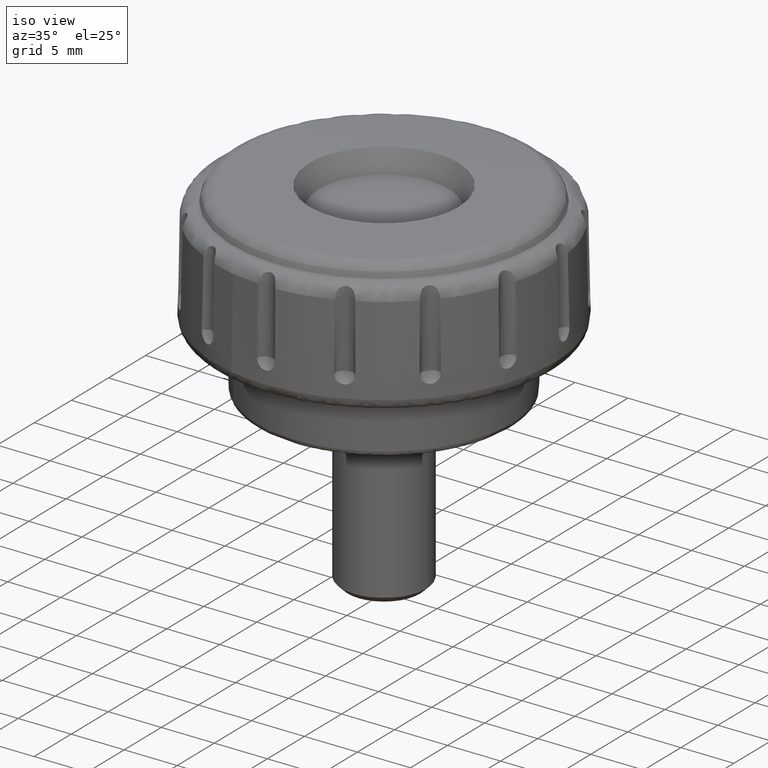
[diagram: clean part render]
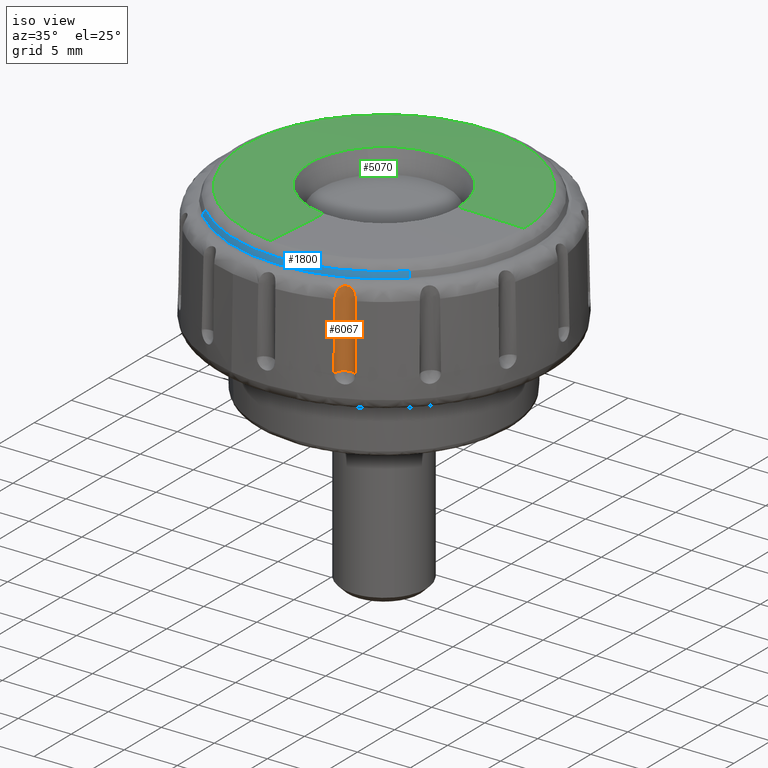
[diagram: same view with three faces highlighted in distinct colors, each labeled with its STEP entity id]
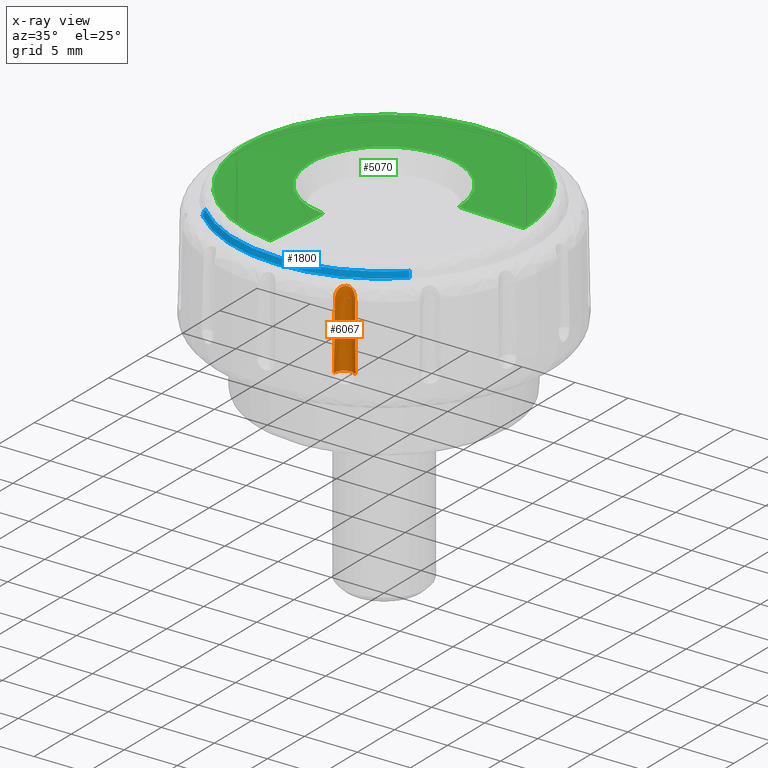
[diagram: x-ray of the same camera — body ghosted, the three highlighted faces saturated]
A machine part, iso view with three faces highlighted in distinct colors.
The next image is the same camera in x-ray (body ghosted, the three faces saturated) — at least one of them is partly hidden behind the body in this view.
Their STEP definitions:

[orange] entity #6067 — the highlighted face is a freeform B-spline surface patch.
#2724=CARTESIAN_POINT('',(7.155010178623190,-14.099589164040040,15.326313504426750));
#2725=VERTEX_POINT('',#2724);
#2734=CARTESIAN_POINT('',(7.252637012994430,-14.191353394448839,9.099991000000141));
#2735=VERTEX_POINT('',#2734);
#2736=CARTESIAN_POINT('',(7.252637012994430,-14.191353394448839,9.099991000000141));
#2737=CARTESIAN_POINT('',(7.155010178623190,-14.099589164040040,15.326313504426750));
#2738=QUASI_UNIFORM_CURVE('',1,(#2736,#2737),.UNSPECIFIED.,.F.,.U.);
#2739=EDGE_CURVE('',#2735,#2725,#2738,.T.);
#2741=CARTESIAN_POINT('',(5.693269439400051,-14.885628569153020,9.099991000000120));
#2742=VERTEX_POINT('',#2741);
#2793=CARTESIAN_POINT('',(5.690400429287561,-14.751675437226821,15.326313504426750));
#2794=VERTEX_POINT('',#2793);
#2795=CARTESIAN_POINT('',(5.690400429287561,-14.751675437226821,15.326313504426750));
#2796=CARTESIAN_POINT('',(5.693269439400051,-14.885628569153020,9.099991000000120));
#2797=QUASI_UNIFORM_CURVE('',1,(#2795,#2796),.UNSPECIFIED.,.F.,.U.);
#2798=EDGE_CURVE('',#2794,#2742,#2797,.T.);
#4790=CARTESIAN_POINT('',(7.155010178623179,-14.099589164040040,15.326313504426750));
#4791=CARTESIAN_POINT('',(7.153872079229410,-14.098668923685070,15.392275721103600));
#4792=CARTESIAN_POINT('',(7.148539027649565,-14.094299853092020,15.457215844345249));
#4793=CARTESIAN_POINT('',(7.129177985886060,-14.079364062275941,15.585084659193910));
#4794=CARTESIAN_POINT('',(7.115112860406698,-14.068754201411579,15.648165348789490));
#4795=CARTESIAN_POINT('',(7.076418985129701,-14.042400173702790,15.771480120165689));
#4796=CARTESIAN_POINT('',(7.052274401676002,-14.026993939427390,15.830187260820811));
#4797=CARTESIAN_POINT('',(7.007424465464729,-14.002362371140689,15.913622888200081));
#4798=CARTESIAN_POINT('',(6.991024899165778,-13.993902433491490,15.940659858825740));
#4799=CARTESIAN_POINT('',(6.954928545796283,-13.976881949035810,15.993099398981199));
#4800=CARTESIAN_POINT('',(6.935289303765049,-13.968362239756109,16.018370617664150));
#4801=CARTESIAN_POINT('',(6.872469715871786,-13.944017231579590,16.089836993467131));
#4802=CARTESIAN_POINT('',(6.824858456605252,-13.929128694227231,16.132419336099549));
#4803=CARTESIAN_POINT('',(6.717624058069604,-13.906972231732640,16.206696576304651));
#4804=CARTESIAN_POINT('',(6.660258309357451,-13.900193439262720,16.236916716465380));
#4805=CARTESIAN_POINT('',(6.569122926503893,-13.899143389727969,16.273372733730451));
#4806=CARTESIAN_POINT('',(6.537611612275643,-13.900352380077109,16.284103694936629));
#4807=CARTESIAN_POINT('',(6.474586606004428,-13.906191922838360,16.302198413553530));
#4808=CARTESIAN_POINT('',(6.443059561454811,-13.910785872488860,16.309608231862089));
#4809=CARTESIAN_POINT('',(6.380067265446056,-13.923463378222630,16.321470491403609));
#4810=CARTESIAN_POINT('',(6.348601795765532,-13.931545253071469,16.325923424713789));
#4811=CARTESIAN_POINT('',(6.285794141848523,-13.951453023181161,16.331938362176221));
#4812=CARTESIAN_POINT('',(6.254943466534269,-13.963139377276940,16.333442616285950));
#4813=CARTESIAN_POINT('',(6.195103786972684,-13.989611566164230,16.333568197326350));
#4814=CARTESIAN_POINT('',(6.165986504078414,-14.004437636349691,16.332201752975369));
#4815=CARTESIAN_POINT('',(6.109360703456350,-14.037272097609470,16.326516220408550));
#4816=CARTESIAN_POINT('',(6.081714636102221,-14.055409816732441,16.322144624058801));
#4817=CARTESIAN_POINT('',(6.029660307390033,-14.093717537669241,16.310487336771359));
#4818=CARTESIAN_POINT('',(6.005056914140068,-14.113979221621459,16.303198625291209));
#4819=CARTESIAN_POINT('',(5.958569259411425,-14.156485693716700,16.285489112634881));
#4820=CARTESIAN_POINT('',(5.936591930343115,-14.178839377608631,16.275010779707198));
#4821=CARTESIAN_POINT('',(5.875313556136472,-14.247846847711330,16.238602871068771));
#4822=CARTESIAN_POINT('',(5.841669095699775,-14.295158960809211,16.208460699983139));
#4823=CARTESIAN_POINT('',(5.799977422945171,-14.365863587420360,16.153291029476762));
#4824=CARTESIAN_POINT('',(5.787620073782566,-14.389306200205370,16.133261844905380));
#4825=CARTESIAN_POINT('',(5.766063632782382,-14.434489351810230,16.090859748792742));
#4826=CARTESIAN_POINT('',(5.756765933131971,-14.456393644669181,16.068364298256711));
#4827=CARTESIAN_POINT('',(5.740603058117427,-14.498587612265350,16.020775310077280));
#4828=CARTESIAN_POINT('',(5.733710562348033,-14.518977953581510,15.995538181463861));
#4829=CARTESIAN_POINT('',(5.722070583673449,-14.557347453599331,15.943208481862390));
#4830=CARTESIAN_POINT('',(5.717314969428277,-14.575312270280580,15.916170960119111));
#4831=CARTESIAN_POINT('',(5.709385927126546,-14.608797425340420,15.860425718516611));
#4832=CARTESIAN_POINT('',(5.706213849121438,-14.624317979147680,15.831717933635810));
#4833=CARTESIAN_POINT('',(5.701026223483047,-14.652879611350491,15.772672126267000));
#4834=CARTESIAN_POINT('',(5.699011033868906,-14.665937812188821,15.742256066367601));
#4835=CARTESIAN_POINT('',(5.694252125510992,-14.700752129798980,15.650174610634000));
#4836=CARTESIAN_POINT('',(5.692698057501048,-14.718441833733509,15.587218446226860));
#4837=CARTESIAN_POINT('',(5.690804739832751,-14.743205357754350,15.458347906808440));
#4838=CARTESIAN_POINT('',(5.690478195154371,-14.750212010675160,15.392361151363779));
#4839=CARTESIAN_POINT('',(5.690400429287561,-14.751675437226821,15.326313504426750));
#4840=B_SPLINE_CURVE_WITH_KNOTS('',3,(#4790,#4791,#4792,#4793,#4794,#4795,#4796,#4797,#4798,#4799,#4800,#4801,#4802,#4803,#4804,#4805,#4806,#4807,#4808,#4809,#4810,#4811,#4812,#4813,#4814,#4815,#4816,#4817,#4818,#4819,#4820,#4821,#4822,#4823,#4824,#4825,#4826,#4827,#4828,#4829,#4830,#4831,#4832,#4833,#4834,#4835,#4836,#4837,#4838,#4839),.UNSPECIFIED.,.F.,.U.,(4,2,2,2,2,2,2,2,2,2,2,2,2,2,2,2,2,2,2,2,2,2,2,2,4),(0.0,0.062500000000001,0.125000000000002,0.187500000000003,0.218750000000003,0.250000000000003,0.312500000000002,0.375000000000001,0.406250000000000,0.437499999999999,0.468749999999999,0.499999999999998,0.531249999999997,0.562499999999997,0.593749999999996,0.624999999999996,0.687499999999994,0.718749999999995,0.749999999999996,0.781249999999997,0.812499999999999,0.843750000000000,0.875000000000001,0.937500000000000,1.0),.UNSPECIFIED.);
#4841=EDGE_CURVE('',#2725,#2794,#4840,.T.);
#5698=CARTESIAN_POINT('',(7.252637012994430,-14.191353394448839,9.099991000000141));
#5699=CARTESIAN_POINT('',(7.193380583456187,-14.126649376003460,9.099991000000152));
#5700=CARTESIAN_POINT('',(7.051161906944404,-14.011037360229279,9.099991000000127));
#5701=CARTESIAN_POINT('',(6.842281519635142,-13.927472993174209,9.099991000000165));
#5702=CARTESIAN_POINT('',(6.645352107150047,-13.896479996829800,9.099991000000117));
#5703=CARTESIAN_POINT('',(6.468890583730527,-13.899848577385081,9.099991000000166));
#5704=CARTESIAN_POINT('',(6.285996450090870,-13.945279336120720,9.099991000000117));
#5705=CARTESIAN_POINT('',(6.121949488536338,-14.024148039788660,9.099991000000150));
#5706=CARTESIAN_POINT('',(5.989314402573911,-14.121537226468790,9.099991000000131));
#5707=CARTESIAN_POINT('',(5.872961081251881,-14.245876036205161,9.099991000000138));
#5708=CARTESIAN_POINT('',(5.778257487402105,-14.394601201970460,9.099991000000125));
#5709=CARTESIAN_POINT('',(5.696929723832564,-14.609146307786020,9.099991000000141));
#5710=CARTESIAN_POINT('',(5.683104056908516,-14.780825317002121,9.099991000000127));
#5711=CARTESIAN_POINT('',(5.693269439400051,-14.885628569153020,9.099991000000120));
#5712=B_SPLINE_CURVE_WITH_KNOTS('',3,(#5698,#5699,#5700,#5701,#5702,#5703,#5704,#5705,#5706,#5707,#5708,#5709,#5710,#5711),.UNSPECIFIED.,.F.,.U.,(4,1,1,1,1,1,1,1,1,1,1,4),(0.000000129429251,0.263215578872311,0.543986996102314,0.666828537068921,0.859864512371638,1.070445661931333,1.228340024840216,1.403835927672662,1.561764076464395,1.737252124393739,1.930289144539073,2.246141144510818),.UNSPECIFIED.);
#5713=EDGE_CURVE('',#2735,#2742,#5712,.T.);
#6043=CARTESIAN_POINT('',(7.257918182909921,-14.197166644862010,16.514345387040439));
#6044=CARTESIAN_POINT('',(7.257918182909921,-14.197166644862010,8.914632140324112));
#6045=CARTESIAN_POINT('',(6.812264025186088,-13.702291196213684,16.514345387040432));
#6046=CARTESIAN_POINT('',(6.812264025186088,-13.702291196213684,8.914632140324112));
#6047=CARTESIAN_POINT('',(6.208715614223856,-13.983784808212951,16.514345387040439));
#6048=CARTESIAN_POINT('',(6.208715614223856,-13.983784808212951,8.914632140324112));
#6049=CARTESIAN_POINT('',(5.605167203261628,-14.265278420212214,16.514345387040432));
#6050=CARTESIAN_POINT('',(5.605167203261628,-14.265278420212214,8.914632140324112));
#6051=CARTESIAN_POINT('',(5.697900405394010,-14.924755403278100,16.514345387040439));
#6052=CARTESIAN_POINT('',(5.697900405394010,-14.924755403278100,8.914632140324112));
#6060=(BOUNDED_SURFACE()B_SPLINE_SURFACE(1,2,((#6043,#6045,#6047,#6049,#6051),(#6044,#6046,#6048,#6050,#6052)),.UNSPECIFIED.,.F.,.F.,.U.)B_SPLINE_SURFACE_WITH_KNOTS((2,2),(3,2,3),(0.0,7.599713246716327),(0.0,1.0,2.0),.UNSPECIFIED.)GEOMETRIC_REPRESENTATION_ITEM()RATIONAL_B_SPLINE_SURFACE(((1.0,0.803856860617218,1.0,0.803856860617218,1.0),(1.0,0.803856860617218,1.0,0.803856860617218,1.0)))REPRESENTATION_ITEM('')SURFACE());
#6061=ORIENTED_EDGE('',*,*,#2798,.T.);
#6062=ORIENTED_EDGE('',*,*,#5713,.F.);
#6063=ORIENTED_EDGE('',*,*,#2739,.T.);
#6064=ORIENTED_EDGE('',*,*,#4841,.T.);
#6065=EDGE_LOOP('',(#6061,#6062,#6063,#6064));
#6066=FACE_OUTER_BOUND('',#6065,.T.);
#6067=ADVANCED_FACE('',(#6066),#6060,.F.);

[blue] entity #1800 — the highlighted face is a freeform B-spline surface patch.
#1714=CARTESIAN_POINT('',(9.608519397111811,-10.325061848714080,17.137740606845416));
#1715=CARTESIAN_POINT('',(-0.141988276909602,-19.398900193729954,17.137740606845416));
#1716=CARTESIAN_POINT('',(-9.758628309538558,-10.183305980904120,17.137740606845409));
#1717=CARTESIAN_POINT('',(9.745190416654793,-10.471924926300439,16.586552002389169));
#1718=CARTESIAN_POINT('',(-0.144007909879717,-19.674829018756480,16.586552002389173));
#1719=CARTESIAN_POINT('',(-9.897434469497663,-10.328152731293841,16.586552002389169));
#1727=(BOUNDED_SURFACE()B_SPLINE_SURFACE(2,1,((#1714,#1717),(#1715,#1718),(#1716,#1719)),.UNSPECIFIED.,.F.,.F.,.U.)B_SPLINE_SURFACE_WITH_KNOTS((3,3),(2,2),(0.0,22.746832582546570),(0.0,1.0),.UNSPECIFIED.)GEOMETRIC_REPRESENTATION_ITEM()RATIONAL_B_SPLINE_SURFACE(((0.977505800795127,0.977505800795127),(0.718822509939086,0.718822509939086),(1.0,1.0)))REPRESENTATION_ITEM('')SURFACE());
#1728=CARTESIAN_POINT('',(9.741856906502697,-10.468342824925591,16.599995910156569));
#1729=VERTEX_POINT('',#1728);
#1730=CARTESIAN_POINT('',(0.0,-14.299999315932620,16.599995626888099));
#1731=VERTEX_POINT('',#1730);
#1732=CARTESIAN_POINT('',(9.741856906502697,-10.468342824925591,16.599995910156569));
#1733=CARTESIAN_POINT('',(9.292379113510563,-10.886657142711231,16.599995897086899));
#1734=CARTESIAN_POINT('',(8.469361135168084,-11.559062888301110,16.599995873155638));
#1735=CARTESIAN_POINT('',(6.991046544692801,-12.514616214651580,16.599995830169959));
#1736=CARTESIAN_POINT('',(5.280686533611892,-13.348831928726771,16.599995780437101));
#1737=CARTESIAN_POINT('',(3.462779368685784,-13.914241545402270,16.599995727576850));
#1738=CARTESIAN_POINT('',(1.674584451681089,-14.231575062932210,16.599995675580729));
#1739=CARTESIAN_POINT('',(0.614017182433850,-14.300020509484600,16.599995644742162));
#1740=CARTESIAN_POINT('',(0.0,-14.299999315932620,16.599995626888099));
#1741=B_SPLINE_CURVE_WITH_KNOTS('',3,(#1732,#1733,#1734,#1735,#1736,#1737,#1738,#1739,#1740),.UNSPECIFIED.,.F.,.U.,(4,1,1,1,1,1,4),(2.848211E-009,1.842051558620533,3.181727910286639,5.274971293402114,7.535666887788800,8.875343239456532,10.717394795228460),.UNSPECIFIED.);
#1742=EDGE_CURVE('',#1729,#1731,#1741,.T.);
#1743=ORIENTED_EDGE('',*,*,#1742,.F.);
#1744=CARTESIAN_POINT('',(9.611771842843840,-10.328556841225920,17.124623626887999));
#1745=VERTEX_POINT('',#1744);
#1746=CARTESIAN_POINT('',(9.611771842843840,-10.328556841225920,17.124623626887999));
#1747=CARTESIAN_POINT('',(9.741856906502697,-10.468342824925591,16.599995910156569));
#1748=QUASI_UNIFORM_CURVE('',1,(#1746,#1747),.UNSPECIFIED.,.F.,.U.);
#1749=EDGE_CURVE('',#1745,#1729,#1748,.T.);
#1750=ORIENTED_EDGE('',*,*,#1749,.F.);
#1751=CARTESIAN_POINT('',(0.0,-14.109048315932601,17.124623626887999));
#1752=VERTEX_POINT('',#1751);
#1753=CARTESIAN_POINT('',(9.611771842843840,-10.328556841225920,17.124623626887999));
#1754=CARTESIAN_POINT('',(9.168297036614666,-10.741286096770880,17.124623626887999));
#1755=CARTESIAN_POINT('',(8.334901098788805,-11.422173991162749,17.124623626888010));
#1756=CARTESIAN_POINT('',(7.035746596961135,-12.256503133060820,17.124623626888049));
#1757=CARTESIAN_POINT('',(5.512743368380702,-13.032779299461030,17.124623626887921));
#1758=CARTESIAN_POINT('',(3.923592090886948,-13.594199848870410,17.124623626888120));
#1759=CARTESIAN_POINT('',(1.982656364863614,-14.009455153115759,17.124623626887949));
#1760=CARTESIAN_POINT('',(0.771045290447395,-14.109113863307170,17.124623626888070));
#1761=CARTESIAN_POINT('',(0.0,-14.109048315932601,17.124623626887999));
#1762=B_SPLINE_CURVE_WITH_KNOTS('',3,(#1753,#1754,#1755,#1756,#1757,#1758,#1759,#1760,#1761),.UNSPECIFIED.,.F.,.U.,(4,1,1,1,1,1,4),(2.806333E-009,1.817452836768229,3.221853467934466,4.626249902655982,6.939371394292045,8.261158938652974,10.574283131006689),.UNSPECIFIED.);
#1763=EDGE_CURVE('',#1745,#1752,#1762,.T.);
#1764=ORIENTED_EDGE('',*,*,#1763,.T.);
#1765=CARTESIAN_POINT('',(-9.761931566542479,-10.186752989616560,17.124623626887999));
#1766=VERTEX_POINT('',#1765);
#1767=CARTESIAN_POINT('',(0.0,-14.109048315932601,17.124623626887999));
#1768=CARTESIAN_POINT('',(-0.786104505014326,-14.109116837705360,17.124623626888042));
#1769=CARTESIAN_POINT('',(-2.105607661090680,-13.998467031025051,17.124623626887931));
#1770=CARTESIAN_POINT('',(-3.778137731152891,-13.617660607944570,17.124623626888091));
#1771=CARTESIAN_POINT('',(-5.110742769106924,-13.172552550295720,17.124623626887871));
#1772=CARTESIAN_POINT('',(-6.474247435741735,-12.572020593336189,17.124623626888141));
#1773=CARTESIAN_POINT('',(-8.099477470521189,-11.616948847988370,17.124623626887811));
#1774=CARTESIAN_POINT('',(-9.194409220414491,-10.730699289056870,17.124623626888159));
#1775=CARTESIAN_POINT('',(-9.761931566542479,-10.186752989616560,17.124623626887999));
#1776=B_SPLINE_CURVE_WITH_KNOTS('',3,(#1767,#1768,#1769,#1770,#1771,#1772,#1773,#1774,#1775),.UNSPECIFIED.,.F.,.U.,(4,1,1,1,1,1,4),(2.723125E-009,2.358303529055807,3.958582610859946,5.137740833561293,6.569558525977371,8.422516487208048,10.780819833488129),.UNSPECIFIED.);
#1777=EDGE_CURVE('',#1752,#1766,#1776,.T.);
#1778=ORIENTED_EDGE('',*,*,#1777,.T.);
#1779=CARTESIAN_POINT('',(-9.894048953401104,-10.324619883723370,16.599995626888099));
#1780=VERTEX_POINT('',#1779);
#1781=CARTESIAN_POINT('',(-9.761931566542479,-10.186752989616560,17.124623626887999));
#1782=CARTESIAN_POINT('',(-9.894048953401104,-10.324619883723370,16.599995626888099));
#1783=QUASI_UNIFORM_CURVE('',1,(#1781,#1782),.UNSPECIFIED.,.F.,.U.);
#1784=EDGE_CURVE('',#1766,#1780,#1783,.T.);
#1785=ORIENTED_EDGE('',*,*,#1784,.T.);
#1786=CARTESIAN_POINT('',(0.0,-14.299999315932620,16.599995626888099));
#1787=CARTESIAN_POINT('',(-0.939025784129570,-14.300120795603590,16.599995626888141));
#1788=CARTESIAN_POINT('',(-2.361722619478311,-14.159340526826250,16.599995626888020));
#1789=CARTESIAN_POINT('',(-4.212375664122871,-13.691199262675680,16.599995626888180));
#1790=CARTESIAN_POINT('',(-5.470650965762528,-13.233005373662481,16.599995626888060));
#1791=CARTESIAN_POINT('',(-6.733823779824612,-12.640235387361930,16.599995626888148));
#1792=CARTESIAN_POINT('',(-8.230105967797602,-11.754965809629409,16.599995626888010));
#1793=CARTESIAN_POINT('',(-9.298298874801228,-10.895613527378620,16.599995626888180));
#1794=CARTESIAN_POINT('',(-9.894048953401104,-10.324619883723370,16.599995626888099));
#1795=B_SPLINE_CURVE_WITH_KNOTS('',3,(#1786,#1787,#1788,#1789,#1790,#1791,#1792,#1793,#1794),.UNSPECIFIED.,.F.,.U.,(4,1,1,1,1,1,4),(2.756135E-009,2.817046833753709,4.268256264924992,5.719451923592840,6.829203751862598,8.451140944073003,10.926726792053151),.UNSPECIFIED.);
#1796=EDGE_CURVE('',#1731,#1780,#1795,.T.);
#1797=ORIENTED_EDGE('',*,*,#1796,.F.);
#1798=EDGE_LOOP('',(#1743,#1750,#1764,#1778,#1785,#1797));
#1799=FACE_OUTER_BOUND('',#1798,.T.);
#1800=ADVANCED_FACE('',(#1799),#1727,.T.);

[green] entity #5070 — the highlighted face is a freeform B-spline surface patch.
#1023=CARTESIAN_POINT('',(7.036936974582124,0.0,17.938091555265981));
#1024=VERTEX_POINT('',#1023);
#1036=CARTESIAN_POINT('',(-0.000003567127282,7.036943338458729,17.938091499278041));
#1037=VERTEX_POINT('',#1036);
#1038=CARTESIAN_POINT('',(7.036936974582124,0.0,17.938091555265981));
#1039=CARTESIAN_POINT('',(7.037015475240285,0.503750865292410,17.938091555266649));
#1040=CARTESIAN_POINT('',(6.948454762833911,1.324095951826497,17.938091554561769));
#1041=CARTESIAN_POINT('',(6.590870719713413,2.557180418948692,17.938091551717001));
#1042=CARTESIAN_POINT('',(6.133663221079314,3.508770257739138,17.938091548079530));
#1043=CARTESIAN_POINT('',(5.543733163004638,4.362887030503726,17.938091543385461));
#1044=CARTESIAN_POINT('',(4.901439328709915,5.084844470071791,17.938091538275081));
#1045=CARTESIAN_POINT('',(4.148058151320357,5.714810269648546,17.938091532281280));
#1046=CARTESIAN_POINT('',(3.190496817735109,6.304866030803290,17.938091524662511));
#1047=CARTESIAN_POINT('',(2.230005346988655,6.706184500971824,17.938091517020759));
#1048=CARTESIAN_POINT('',(1.108221175615193,6.976180885747322,17.938091508095319));
#1049=CARTESIAN_POINT('',(0.402993438119018,7.036979793321484,17.938091502484269));
#1050=CARTESIAN_POINT('',(-0.000003567127282,7.036943338458729,17.938091499278041));
#1051=B_SPLINE_CURVE_WITH_KNOTS('',3,(#1038,#1039,#1040,#1041,#1042,#1043,#1044,#1045,#1046,#1047,#1048,#1049,#1050),.UNSPECIFIED.,.F.,.U.,(4,1,1,1,1,1,1,1,1,1,4),(0.000000022765544,1.511234607032424,2.461157023049827,3.842861004734020,4.663249683749744,5.569973676920327,6.735796313800893,7.599358923698764,8.937889025525147,9.844632345203848,11.053619100212281),.UNSPECIFIED.);
#1052=EDGE_CURVE('',#1024,#1037,#1051,.T.);
#1054=CARTESIAN_POINT('',(-5.019102588270111,4.932258379281135,17.938090353015049));
#1055=VERTEX_POINT('',#1054);
#1056=CARTESIAN_POINT('',(-0.000003567127282,7.036943338458729,17.938091499278041));
#1057=CARTESIAN_POINT('',(-0.480245200814507,7.037014418480442,17.938091389600320));
#1058=CARTESIAN_POINT('',(-1.426139207727420,6.939737070290067,17.938091173576879));
#1059=CARTESIAN_POINT('',(-2.695942824709153,6.541394388691487,17.938090883578742));
#1060=CARTESIAN_POINT('',(-3.923682480132170,5.896057251989729,17.938090603187462));
#1061=CARTESIAN_POINT('',(-4.641777058036466,5.316396034093810,17.938090439188699));
#1062=CARTESIAN_POINT('',(-5.019102588270111,4.932258379281135,17.938090353015049));
#1063=B_SPLINE_CURVE_WITH_KNOTS('',3,(#1056,#1057,#1058,#1059,#1060,#1061,#1062),.UNSPECIFIED.,.F.,.U.,(4,1,1,1,4),(6.110641E-009,1.440712274127126,2.837759016872129,3.972871702604714,5.588216626805162),.UNSPECIFIED.);
#1064=EDGE_CURVE('',#1037,#1055,#1063,.T.);
#1168=CARTESIAN_POINT('',(-7.036943338458740,0.0,17.938091443290102));
#1169=VERTEX_POINT('',#1168);
#1170=CARTESIAN_POINT('',(-5.019102588270111,4.932258379281135,17.938090353015049));
#1171=CARTESIAN_POINT('',(-5.308430433777023,4.637887371242027,17.938090416741868));
#1172=CARTESIAN_POINT('',(-5.825974054031585,4.009060777437770,17.938090553673049));
#1173=CARTESIAN_POINT('',(-6.333204110695139,3.114385452398619,17.938090750317389));
#1174=CARTESIAN_POINT('',(-6.708042937540244,2.190170736394093,17.938090954640881));
#1175=CARTESIAN_POINT('',(-6.966615709907867,1.209777240652565,17.938091172490719));
#1176=CARTESIAN_POINT('',(-7.036980562204645,0.412753531811119,17.938091350707140));
#1177=CARTESIAN_POINT('',(-7.036943338458740,0.0,17.938091443290102));
#1178=B_SPLINE_CURVE_WITH_KNOTS('',3,(#1170,#1171,#1172,#1173,#1174,#1175,#1176,#1177),.UNSPECIFIED.,.F.,.U.,(4,1,1,1,1,4),(5.853879E-009,1.238254792813470,2.433817704514602,3.074288016792643,4.227146995463612,5.465401782445758),.UNSPECIFIED.);
#1179=EDGE_CURVE('',#1055,#1169,#1178,.T.);
#1181=CARTESIAN_POINT('',(-0.812515239447997,-6.989877719564067,17.938091443289760));
#1182=VERTEX_POINT('',#1181);
#1183=CARTESIAN_POINT('',(-7.036943338458740,0.0,17.938091443290102));
#1184=CARTESIAN_POINT('',(-7.037052629892111,-0.533304501055443,17.938091443290119));
#1185=CARTESIAN_POINT('',(-6.937935240684648,-1.399856542686433,17.938091443290240));
#1186=CARTESIAN_POINT('',(-6.596030866625713,-2.511311896973567,17.938091443289910));
#1187=CARTESIAN_POINT('',(-6.182174457134022,-3.409043304177814,17.938091443290080));
#1188=CARTESIAN_POINT('',(-5.697791762308021,-4.162702211165485,17.938091443290020));
#1189=CARTESIAN_POINT('',(-5.122172448888009,-4.847305157865882,17.938091443289970));
#1190=CARTESIAN_POINT('',(-4.472214491774337,-5.462613872366165,17.938091443290059));
#1191=CARTESIAN_POINT('',(-3.644375969133224,-6.052066343002285,17.938091443289679));
#1192=CARTESIAN_POINT('',(-2.771998538450156,-6.490020116297170,17.938091443289920));
#1193=CARTESIAN_POINT('',(-1.826125116219104,-6.818811859364891,17.938091443289800));
#1194=CARTESIAN_POINT('',(-1.196572895848506,-6.945266726216003,17.938091443289750));
#1195=CARTESIAN_POINT('',(-0.812515239447997,-6.989877719564067,17.938091443289760));
#1196=B_SPLINE_CURVE_WITH_KNOTS('',3,(#1183,#1184,#1185,#1186,#1187,#1188,#1189,#1190,#1191,#1192,#1193,#1194,#1195),.UNSPECIFIED.,.F.,.U.,(4,1,1,1,1,1,1,1,1,1,4),(0.000000019297577,1.599883178474872,2.599819056109729,3.479761652322241,4.559693150196919,5.279619255419132,6.159562450524580,7.239494729407271,8.319423313831161,9.079372039936962,10.239286966072290),.UNSPECIFIED.);
#1197=EDGE_CURVE('',#1169,#1182,#1196,.T.);
#3858=CARTESIAN_POINT('',(-3.515149788345105,12.725805244612751,17.782055462050138));
#3859=VERTEX_POINT('',#3858);
#3871=CARTESIAN_POINT('',(12.503930740618630,4.237212386039502,17.782055606043318));
#3872=VERTEX_POINT('',#3871);
#3873=CARTESIAN_POINT('',(-3.515149788345105,12.725805244612751,17.782055462050138));
#3874=CARTESIAN_POINT('',(-2.812923727461224,12.919836528862630,17.782055470862840));
#3875=CARTESIAN_POINT('',(-1.709767147289968,13.128158034975140,17.782055484280939));
#3876=CARTESIAN_POINT('',(-0.123854587025637,13.222794554446500,17.782055502666239));
#3877=CARTESIAN_POINT('',(1.308199303667847,13.168448544643571,17.782055518650310));
#3878=CARTESIAN_POINT('',(3.008163553591108,12.900779479973201,17.782055536727668));
#3879=CARTESIAN_POINT('',(4.604662288184717,12.410261940753751,17.782055552648121));
#3880=CARTESIAN_POINT('',(6.006516460419962,11.780405789239760,17.782055565748660));
#3881=CARTESIAN_POINT('',(7.250121097017633,11.068698464683660,17.782055576694070));
#3882=CARTESIAN_POINT('',(8.677498513402760,10.016886988016839,17.782055588219869));
#3883=CARTESIAN_POINT('',(10.006426810520921,8.686706438785601,17.782055597401030));
#3884=CARTESIAN_POINT('',(11.060958230200811,7.261741684256061,17.782055603053401));
#3885=CARTESIAN_POINT('',(11.879215336044011,5.838689729677086,17.782055606040380));
#3886=CARTESIAN_POINT('',(12.303543862928370,4.828646502412979,17.782055606383679));
#3887=CARTESIAN_POINT('',(12.503930740618630,4.237212386039502,17.782055606043318));
#3888=B_SPLINE_CURVE_WITH_KNOTS('',3,(#3873,#3874,#3875,#3876,#3877,#3878,#3879,#3880,#3881,#3882,#3883,#3884,#3885,#3886,#3887),.UNSPECIFIED.,.F.,.U.,(4,1,1,1,1,1,1,1,1,1,1,1,4),(0.000000011544611,2.185607466472938,3.356475615644470,4.761517304105871,6.478787029038990,8.508293195060819,9.757222656453370,11.084184635423000,12.801451733482420,15.065130493581821,16.704345961916260,18.109387737406490,19.982763422541900),.UNSPECIFIED.);
#3889=EDGE_CURVE('',#3859,#3872,#3888,.T.);
#3947=CARTESIAN_POINT('',(13.202357429399690,0.0,17.782055615341530));
#3948=VERTEX_POINT('',#3947);
#3949=CARTESIAN_POINT('',(12.503930740618630,4.237212386039502,17.782055606043318));
#3950=CARTESIAN_POINT('',(12.640929749837850,3.832933182986892,17.782055607867211));
#3951=CARTESIAN_POINT('',(12.918943915937490,2.859682138168460,17.782055611568460));
#3952=CARTESIAN_POINT('',(13.153302235774159,1.437851687237720,17.782055614688439));
#3953=CARTESIAN_POINT('',(13.202359726112951,0.426861365247346,17.782055615341580));
#3954=CARTESIAN_POINT('',(13.202357429399690,0.0,17.782055615341530));
#3955=B_SPLINE_CURVE_WITH_KNOTS('',3,(#3949,#3950,#3951,#3952,#3953,#3954),.UNSPECIFIED.,.F.,.U.,(4,1,1,4),(7.833663E-010,1.280586703187660,3.032966655317268,4.313553357721615),.UNSPECIFIED.);
#3956=EDGE_CURVE('',#3872,#3948,#3955,.T.);
#3958=CARTESIAN_POINT('',(-1.524400645267717,-13.114060622112440,17.782055438202281));
#3959=VERTEX_POINT('',#3958);
#3980=CARTESIAN_POINT('',(-13.202362793362500,0.0,17.782055438202701));
#3981=VERTEX_POINT('',#3980);
#3982=CARTESIAN_POINT('',(-1.524400645267717,-13.114060622112440,17.782055438202281));
#3983=CARTESIAN_POINT('',(-2.269797210202166,-13.027469614858710,17.782055438202271));
#3984=CARTESIAN_POINT('',(-3.548939200442570,-12.766781543202541,17.782055438202420));
#3985=CARTESIAN_POINT('',(-5.103469161402457,-12.201481151461239,17.782055438202370));
#3986=CARTESIAN_POINT('',(-6.342595131775064,-11.601275086678889,17.782055438202519));
#3987=CARTESIAN_POINT('',(-7.328046953490778,-11.004040192402380,17.782055438202359));
#3988=CARTESIAN_POINT('',(-8.455870850277021,-10.171678904906919,17.782055438202629));
#3989=CARTESIAN_POINT('',(-9.695316916062154,-9.037865458430808,17.782055438202221));
#3990=CARTESIAN_POINT('',(-10.968228402318790,-7.452086106453277,17.782055438203550));
#3991=CARTESIAN_POINT('',(-11.955648127782560,-5.704799171855753,17.782055438200821));
#3992=CARTESIAN_POINT('',(-12.520945242290690,-4.257095313299146,17.782055438203091));
#3993=CARTESIAN_POINT('',(-12.905359824933130,-2.883254912413187,17.782055438202470));
#3994=CARTESIAN_POINT('',(-13.142586112721240,-1.550836927466662,17.782055438203042));
#3995=CARTESIAN_POINT('',(-13.202372154079891,-0.500268440831451,17.782055438202519));
#3996=CARTESIAN_POINT('',(-13.202362793362500,0.0,17.782055438202701));
#3997=B_SPLINE_CURVE_WITH_KNOTS('',3,(#3982,#3983,#3984,#3985,#3986,#3987,#3988,#3989,#3990,#3991,#3992,#3993,#3994,#3995,#3996),.UNSPECIFIED.,.F.,.U.,(4,1,1,1,1,1,1,1,1,1,1,1,4),(0.000000011966730,2.251223027272438,3.902118043975859,4.952692186089866,6.378467171092915,7.354004768064881,9.154977752753808,11.406189628349090,13.432298604094870,15.158240621782500,16.058728296639408,17.709633517958611,19.210440495256691),.UNSPECIFIED.);
#3998=EDGE_CURVE('',#3959,#3981,#3997,.T.);
#4000=CARTESIAN_POINT('',(-13.202362793362500,0.0,17.782055438202701));
#4001=CARTESIAN_POINT('',(-13.202422977192130,0.738213082499623,17.782055438202558));
#4002=CARTESIAN_POINT('',(-13.106408628356640,1.879056861196371,17.782055438438960));
#4003=CARTESIAN_POINT('',(-12.741075340702050,3.564210141179969,17.782055439338240));
#4004=CARTESIAN_POINT('',(-12.296819033435840,4.881270950242464,17.782055440431861));
#4005=CARTESIAN_POINT('',(-11.652135684393700,6.260830154182742,17.782055442019189));
#4006=CARTESIAN_POINT('',(-10.956287851036899,7.411479849545768,17.782055443731259));
#4007=CARTESIAN_POINT('',(-10.115329773489650,8.516208431716146,17.782055445802531));
#4008=CARTESIAN_POINT('',(-9.186766086282576,9.518519242753275,17.782055448087871));
#4009=CARTESIAN_POINT('',(-8.221705288920195,10.355228699601049,17.782055450463901));
#4010=CARTESIAN_POINT('',(-7.128805288181756,11.135841823319240,17.782055453154360));
#4011=CARTESIAN_POINT('',(-5.656187759284219,11.991246072467710,17.782055456778942));
#4012=CARTESIAN_POINT('',(-4.356125703757500,12.493624753209300,17.782055459980651));
#4013=CARTESIAN_POINT('',(-3.515149788345105,12.725805244612751,17.782055462050138));
#4014=B_SPLINE_CURVE_WITH_KNOTS('',3,(#4000,#4001,#4002,#4003,#4004,#4005,#4006,#4007,#4008,#4009,#4010,#4011,#4012,#4013),.UNSPECIFIED.,.F.,.U.,(4,1,1,1,1,1,1,1,1,1,1,4),(0.000000011456297,2.214625689721048,3.422610875771884,5.167475931996302,6.375456625892118,7.986108912578875,9.194068001784306,10.536280534558569,12.079809596601370,13.019353527459829,14.562887593379640,17.180177270112171),.UNSPECIFIED.);
#4015=EDGE_CURVE('',#3981,#3859,#4014,.T.);
#5005=CARTESIAN_POINT('',(-1.560066917542718,-13.420881761783905,17.771735312001500));
#5006=CARTESIAN_POINT('',(-1.168649952263660,-10.053615427567406,17.886306497347313));
#5007=CARTESIAN_POINT('',(-0.777064938788733,-6.684903415001018,17.943375897032208));
#5008=CARTESIAN_POINT('',(-13.511249981071137,-12.031655207683894,17.771735312001503));
#5009=CARTESIAN_POINT('',(-10.121310482163212,-9.012942410355048,17.886306497347320));
#5010=CARTESIAN_POINT('',(-6.729915570568984,-5.992933580190528,17.943375897032226));
#5011=CARTESIAN_POINT('',(-13.511249981071135,0.0,17.771735312001482));
#5012=CARTESIAN_POINT('',(-10.121310482163215,0.0,17.886306497347302));
#5013=CARTESIAN_POINT('',(-6.729915570568987,0.0,17.943375897032205));
#5014=CARTESIAN_POINT('',(-13.511249981071222,13.511249981071131,17.771735312001510));
#5015=CARTESIAN_POINT('',(-10.121310482163301,10.121310482163212,17.886306497347324));
#5016=CARTESIAN_POINT('',(-6.729915570569073,6.729915570568986,17.943375897032226));
#5017=CARTESIAN_POINT('',(0.0,13.511249981071135,17.771735312001482));
#5018=CARTESIAN_POINT('',(0.0,10.121310482163215,17.886306497347302));
#5019=CARTESIAN_POINT('',(0.0,6.729915570568987,17.943375897032205));
#5020=CARTESIAN_POINT('',(13.511249981071131,13.511249981071222,17.771735312001510));
#5021=CARTESIAN_POINT('',(10.121310482163212,10.121310482163301,17.886306497347324));
#5022=CARTESIAN_POINT('',(6.729915570568986,6.729915570569073,17.943375897032226));
#5023=CARTESIAN_POINT('',(13.511249981071135,0.0,17.771735312001482));
#5024=CARTESIAN_POINT('',(10.121310482163215,0.0,17.886306497347302));
#5025=CARTESIAN_POINT('',(6.729915570568987,0.0,17.943375897032205));
#5033=(BOUNDED_SURFACE()B_SPLINE_SURFACE(2,2,((#5005,#5008,#5011,#5014,#5017,#5020,#5023),(#5006,#5009,#5012,#5015,#5018,#5021,#5024),(#5007,#5010,#5013,#5016,#5019,#5022,#5025)),.UNSPECIFIED.,.F.,.F.,.U.)B_SPLINE_SURFACE_WITH_KNOTS((3,3),(3,2,2,3),(0.000026421597600,6.806548817107082),(0.0,20.595317482226431,42.981533181072713,65.367748879918992),.UNSPECIFIED.)GEOMETRIC_REPRESENTATION_ITEM()RATIONAL_B_SPLINE_SURFACE(((0.943903131617780,0.720626357975959,0.986432068042754,0.697512804492901,0.986432068042754,0.697512804492901,0.986432068042754),(0.947071684567254,0.723045401515014,0.989743384780623,0.699854259012905,0.989743384780623,0.699854259012905,0.989743384780623),(0.950319197493591,0.725524727342205,0.993137219152623,0.702254062311570,0.993137219152623,0.702254062311570,0.993137219152623)))REPRESENTATION_ITEM('')SURFACE());
#5034=ORIENTED_EDGE('',*,*,#1197,.F.);
#5035=ORIENTED_EDGE('',*,*,#1179,.F.);
#5036=ORIENTED_EDGE('',*,*,#1064,.F.);
#5037=ORIENTED_EDGE('',*,*,#1052,.F.);
#5038=CARTESIAN_POINT('',(13.202357429399688,0.0,17.782055615341530));
#5039=CARTESIAN_POINT('',(10.120248660423968,0.0,17.883838905830800));
#5040=CARTESIAN_POINT('',(7.036936974582125,0.0,17.938091555265984));
#5048=(BOUNDED_CURVE()B_SPLINE_CURVE(2,(#5038,#5039,#5040),.UNSPECIFIED.,.F.,.U.)B_SPLINE_CURVE_WITH_KNOTS((3,3),(0.988407101255095,0.993802460724299),.UNSPECIFIED.)CURVE()GEOMETRIC_REPRESENTATION_ITEM()RATIONAL_B_SPLINE_CURVE((0.986732999136901,0.989746964918480,0.992829139359676))REPRESENTATION_ITEM(''));
#5049=EDGE_CURVE('',#3948,#1024,#5048,.T.);
#5050=ORIENTED_EDGE('',*,*,#5049,.F.);
#5051=ORIENTED_EDGE('',*,*,#3956,.F.);
#5052=ORIENTED_EDGE('',*,*,#3889,.F.);
#5053=ORIENTED_EDGE('',*,*,#4015,.F.);
#5054=ORIENTED_EDGE('',*,*,#3998,.F.);
#5055=CARTESIAN_POINT('',(-1.524400645267718,-13.114060622112442,17.782055438202281));
#5056=CARTESIAN_POINT('',(-1.168527389266670,-10.052566606665675,17.883838753572828));
#5057=CARTESIAN_POINT('',(-0.812515239447997,-6.989877719564067,17.938091443289757));
#5065=(BOUNDED_CURVE()B_SPLINE_CURVE(2,(#5055,#5056,#5057),.UNSPECIFIED.,.F.,.U.)B_SPLINE_CURVE_WITH_KNOTS((3,3),(0.988407096574461,0.993802455139002),.UNSPECIFIED.)CURVE()GEOMETRIC_REPRESENTATION_ITEM()RATIONAL_B_SPLINE_CURVE((0.944191104230788,0.947075125707685,0.950024415082222))REPRESENTATION_ITEM(''));
#5066=EDGE_CURVE('',#3959,#1182,#5065,.T.);
#5067=ORIENTED_EDGE('',*,*,#5066,.T.);
#5068=EDGE_LOOP('',(#5034,#5035,#5036,#5037,#5050,#5051,#5052,#5053,#5054,#5067));
#5069=FACE_OUTER_BOUND('',#5068,.T.);
#5070=ADVANCED_FACE('',(#5069),#5033,.T.);